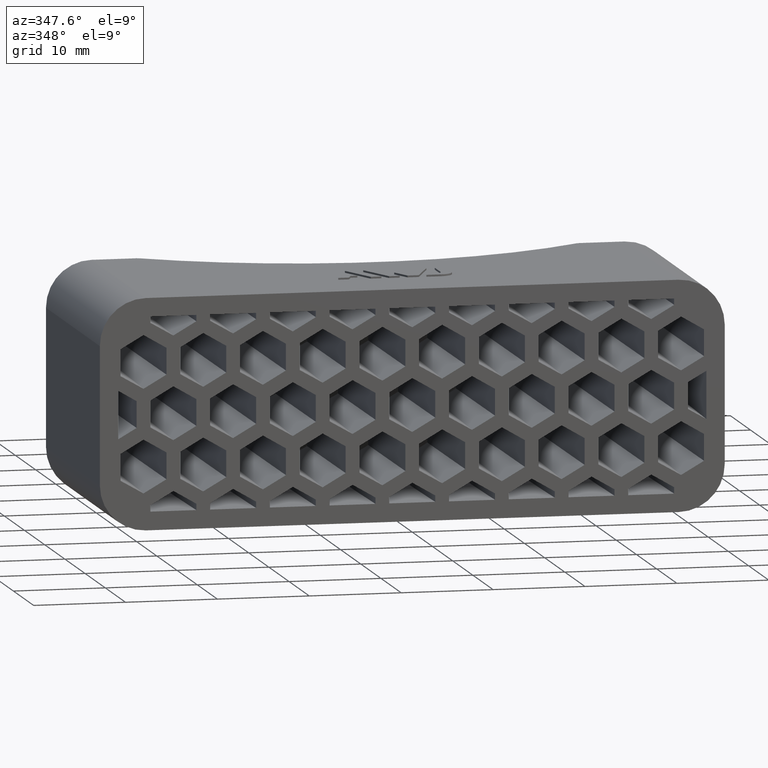
[diagram: clean part render]
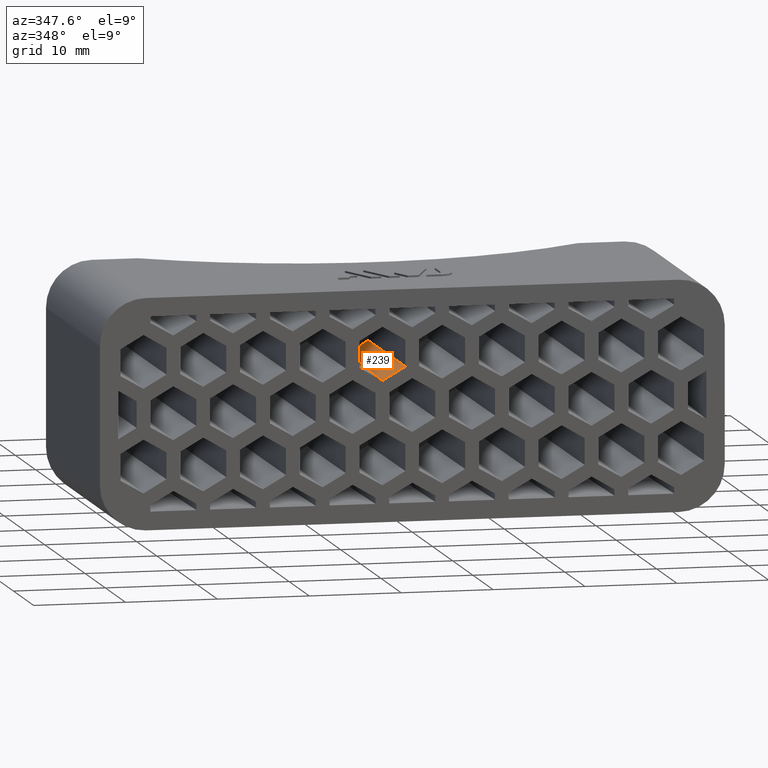
[diagram: same view with one face highlighted and labeled with its STEP entity id]
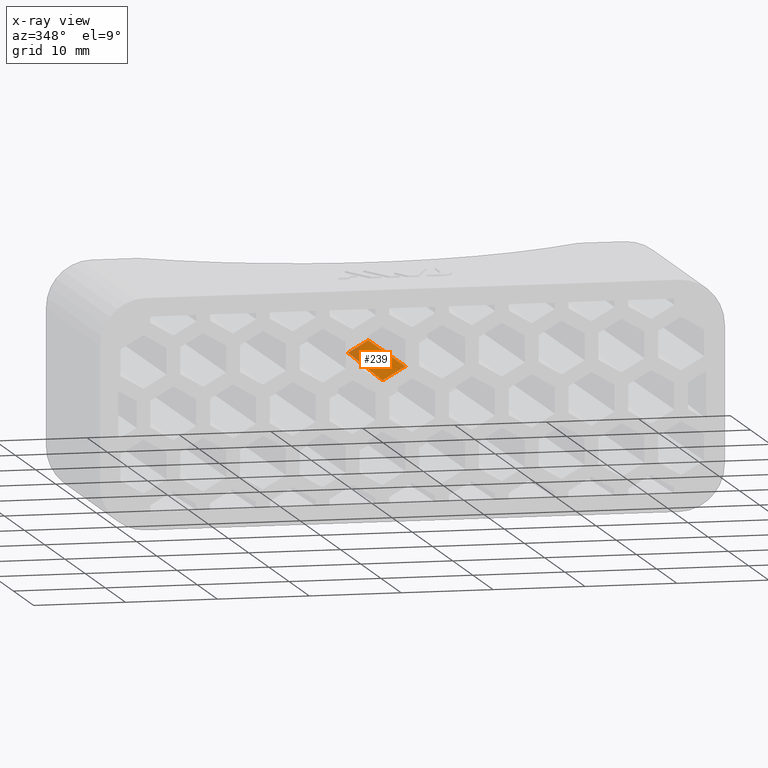
[diagram: x-ray of the same camera — body ghosted, the highlighted face saturated]
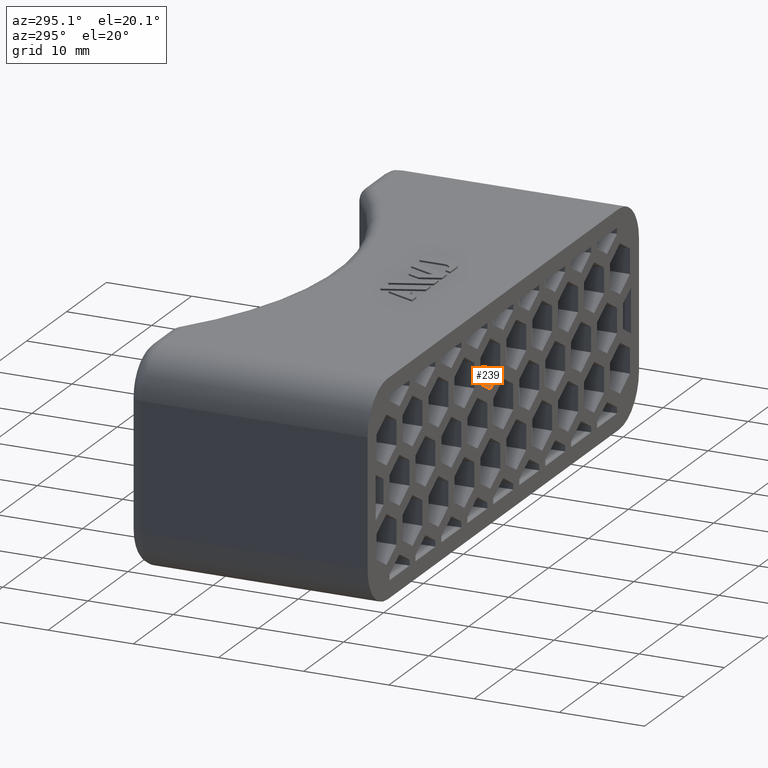
[diagram: same view with one face highlighted and labeled with its STEP entity id]
A machine part, auxiliary view. The second image highlights one B-rep face of the part: STEP entity #239.
The next image is the same camera in x-ray: the body ghosted, the highlighted face saturated — about 9% of this face is hidden behind the body in this view.
A second angle (auxiliary view) of the same face is appended — the face is thin or edge-on in the first view.
In plain terms, the highlighted planar face has unit normal (0.4999, 0.0175, -0.8659).
Its self-contained STEP definition (entity closure, byte-faithful):
#239 = ADVANCED_FACE( '', ( #852 ), #853, .F. );
#852 = FACE_OUTER_BOUND( '', #1694, .T. );
#853 = PLANE( '', #1695 );
#1694 = EDGE_LOOP( '', ( #3627, #3628, #3629, #3630 ) );
#1695 = AXIS2_PLACEMENT_3D( '', #3631, #3632, #3633 );
#3627 = ORIENTED_EDGE( '', *, *, #5996, .T. );
#3628 = ORIENTED_EDGE( '', *, *, #5997, .T. );
#3629 = ORIENTED_EDGE( '', *, *, #5443, .T. );
#3630 = ORIENTED_EDGE( '', *, *, #5998, .F. );
#3631 = CARTESIAN_POINT( '', ( 0.500000000000008, 0.000000000000000, 4.90747728811182 ) );
#3632 = DIRECTION( '', ( 0.499923847578195, 0.0174524064372835, -0.865893503920754 ) );
#3633 = DIRECTION( '', ( -0.866025403784439, 0.000000000000000, -0.500000000000000 ) );
#5443 = EDGE_CURVE( '', #6557, #6554, #6558, .T. );
#5996 = EDGE_CURVE( '', #7499, #7500, #7501, .T. );
#5997 = EDGE_CURVE( '', #7500, #6557, #7502, .T. );
#5998 = EDGE_CURVE( '', #7499, #6554, #7503, .T. );
#6554 = VERTEX_POINT( '', #8322 );
#6557 = VERTEX_POINT( '', #8326 );
#6558 = LINE( '', #8327, #8328 );
#7499 = VERTEX_POINT( '', #9714 );
#7500 = VERTEX_POINT( '', #9715 );
#7501 = ELLIPSE( '', #9716, 48.1006033783708, 41.6500000000000 );
#7502 = LINE( '', #9717, #9718 );
#7503 = LINE( '', #9719, #9720 );
#8322 = CARTESIAN_POINT( '', ( -0.749999999999996, 0.000000000000000, 4.18578945162478 ) );
#8326 = CARTESIAN_POINT( '', ( -3.24999999999999, 0.000000000000000, 2.74241377865072 ) );
#8327 = CARTESIAN_POINT( '', ( 0.500000000000008, 0.000000000000000, 4.90747728811182 ) );
#8328 = VECTOR( '', #10545, 1000.00000000000 );
#9714 = CARTESIAN_POINT( '', ( -1.04696582975518, 17.0131609923217, 4.35724275337407 ) );
#9715 = CARTESIAN_POINT( '', ( -3.24999999999999, 17.1269943284449, 3.08761473548389 ) );
#9716 = AXIS2_PLACEMENT_3D( '', #11312, #11313, #11314 );
#9717 = CARTESIAN_POINT( '', ( -3.24999999999999, -0.0567059248553492, 2.74127084959132 ) );
#9718 = VECTOR( '', #11315, 1000.00000000000 );
#9719 = CARTESIAN_POINT( '', ( -0.749746203692261, -0.0145399807321422, 4.18564292225819 ) );
#9720 = VECTOR( '', #11316, 1000.00000000000 );
#10545 = DIRECTION( '', ( 0.866025403784439, 0.000000000000000, 0.500000000000000 ) );
#11312 = CARTESIAN_POINT( '', ( 0.000000000000000, 58.6500000000000, 5.80091477234588 ) );
#11313 = DIRECTION( '', ( 0.499923847578195, 0.0174524064372835, -0.865893503920754 ) );
#11314 = DIRECTION( '', ( 0.865366346075250, 0.0302100515148758, 0.500228387706894 ) );
#11315 = DIRECTION( '', ( -3.00523943436880E-018, -0.999796942337605, -0.0201512801671579 ) );
#11316 = DIRECTION( '', ( 0.0174515205435363, -0.999796942337605, -0.0100756400835790 ) );